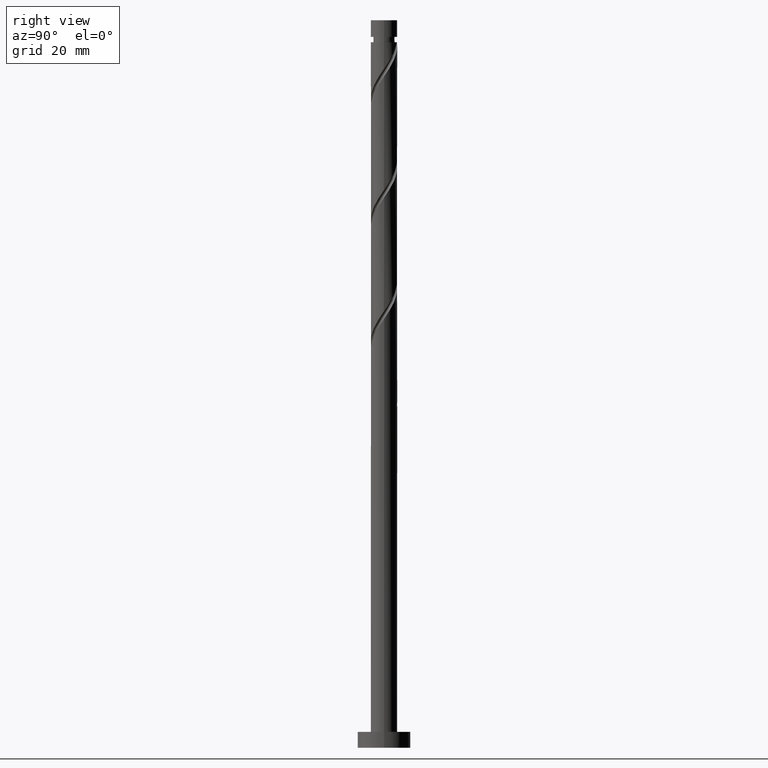
[diagram: clean part render]
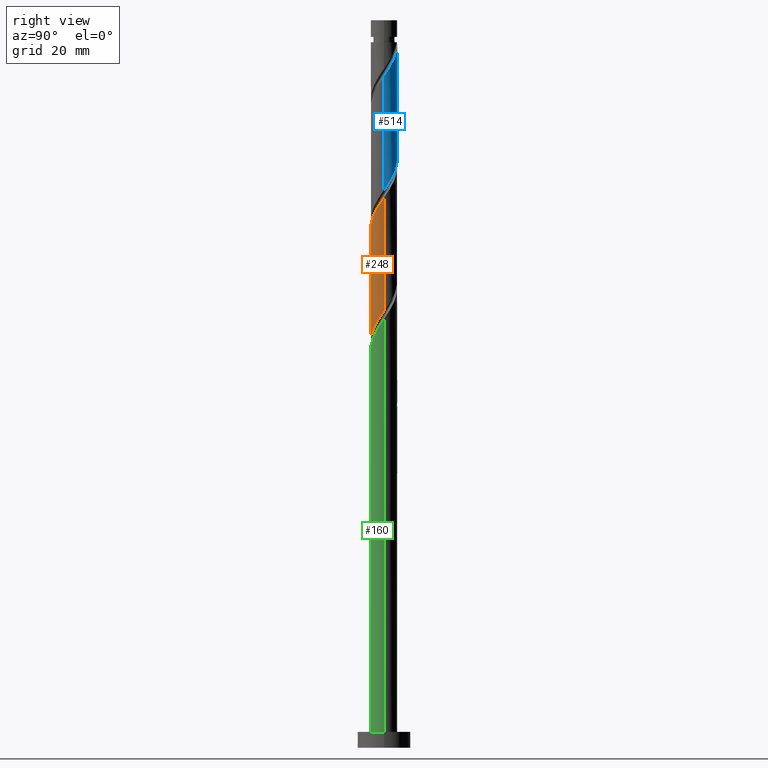
[diagram: same view with three faces highlighted in distinct colors, each labeled with its STEP entity id]
A machine part, right view with three faces highlighted in distinct colors.
Their STEP definitions:

[orange] entity #248 — the highlighted cylindrical surface (edge-blend (fillet) strip) has radius 2.5 mm, axis along (-0, -0, -1).
#80 = CARTESIAN_POINT ( 'NONE',  ( -2.500000000000000000, 0.000000000000000000, 137.4799999999999898 ) ) ;
#85 = CARTESIAN_POINT ( 'NONE',  ( 1.842554741020976605, -1.689672165344845656, 101.2424563204737922 ) ) ;
#89 = ORIENTED_EDGE ( 'NONE', *, *, #1012, .F. ) ;
#104 = CARTESIAN_POINT ( 'NONE',  ( 2.449999999999998401, -0.4974937185533111483, 81.76612298714047711 ) ) ;
#120 = CARTESIAN_POINT ( 'NONE',  ( 1.689672165344841437, -1.842554741020973719, 79.47478965380713589 ) ) ;
#141 = LINE ( 'NONE', #368, #480 ) ;
#151 = DIRECTION ( 'NONE',  ( -0.000000000000000000, -0.000000000000000000, -1.000000000000000000 ) ) ;
#161 = CARTESIAN_POINT ( 'NONE',  ( -2.500000000000003997, -3.163544687256392329E-15, 92.49161333658051376 ) ) ;
#166 = DIRECTION ( 'NONE',  ( -0.000000000000000000, -0.000000000000000000, -1.000000000000000000 ) ) ;
#188 = ORIENTED_EDGE ( 'NONE', *, *, #979, .F. ) ;
#199 = CARTESIAN_POINT ( 'NONE',  ( 1.230236279064655491, -2.176354451295370307, 100.0967896538071358 ) ) ;
#201 = LINE ( 'NONE', #80, #553 ) ;
#202 = VERTEX_POINT ( 'NONE', #161 ) ;
#205 = CARTESIAN_POINT ( 'NONE',  ( 0.4974937185533108708, -2.450000000000003286, 98.95112298714046517 ) ) ;
#211 = CARTESIAN_POINT ( 'NONE',  ( 1.981504166768769837, -1.574936960780884299, 80.04762298714045698 ) ) ;
#223 = CARTESIAN_POINT ( 'NONE',  ( 2.371204735821960785, -0.8855355973484247967, 81.19328965380711338 ) ) ;
#227 = CARTESIAN_POINT ( 'NONE',  ( 0.1094518397581963759, -2.528795264178041791, 98.37828965380712987 ) ) ;
#239 = DIRECTION ( 'NONE',  ( -0.000000000000000000, -0.000000000000000000, -1.000000000000000000 ) ) ;
#242 = EDGE_LOOP ( 'NONE', ( #538, #188, #753, #89 ) ) ;
#248 = ADVANCED_FACE ( 'NONE', ( #1243 ), #522, .T. ) ;
#310 = CARTESIAN_POINT ( 'NONE',  ( 2.499999999999999556, -0.2512594538148057444, 82.12961776015055193 ) ) ;
#343 = CARTESIAN_POINT ( 'NONE',  ( -0.4974937185533110373, -2.449999999999998401, 76.03778965380713828 ) ) ;
#356 = CARTESIAN_POINT ( 'NONE',  ( 2.500000000000003109, -0.1424343436160809273, 103.7398481268934347 ) ) ;
#366 = EDGE_CURVE ( 'NONE', #202, #885, #201, .T. ) ;
#368 = CARTESIAN_POINT ( 'NONE',  ( 2.500000000000000000, 3.061616997868383141E-16, 137.4799999999999898 ) ) ;
#417 = CARTESIAN_POINT ( 'NONE',  ( 2.500000000000003553, 2.803710220459456568E-15, 103.9482800032471630 ) ) ;
#429 = VERTEX_POINT ( 'NONE', #417 ) ;
#460 = CARTESIAN_POINT ( 'NONE',  ( -0.6773458265033737158, -2.438849692923737766, 97.23262298714045926 ) ) ;
#474 = CARTESIAN_POINT ( 'NONE',  ( -2.110172521261064027, -1.397840163920913703, 73.17362298714046176 ) ) ;
#480 = VECTOR ( 'NONE', #239, 1000.000000000000000 ) ;
#522 = CYLINDRICAL_SURFACE ( 'NONE', #1095, 2.500000000000000000 ) ;
#538 = ORIENTED_EDGE ( 'NONE', *, *, #1459, .F. ) ;
#553 = VECTOR ( 'NONE', #166, 1000.000000000000000 ) ;
#566 = CARTESIAN_POINT ( 'NONE',  ( 2.110172521261067136, -1.397840163920917256, 101.8152896538071559 ) ) ;
#569 = CARTESIAN_POINT ( 'NONE',  ( 1.037592995212142544, -2.274511107092398010, 78.32912298714045107 ) ) ;
#679 = CARTESIAN_POINT ( 'NONE',  ( 1.574936960780886075, -1.981504166768774056, 100.6696229871404853 ) ) ;
#682 = CARTESIAN_POINT ( 'NONE',  ( -2.499999999999999112, -3.118565378906798285E-15, 71.04063263770045467 ) ) ;
#694 = CARTESIAN_POINT ( 'NONE',  ( -2.500000000000001776, -0.2512594538148121281, 92.85929488079706573 ) ) ;
#711 = CARTESIAN_POINT ( 'NONE',  ( -1.230236279064653937, -2.176354451295364978, 74.89212298714045346 ) ) ;
#730 = CARTESIAN_POINT ( 'NONE',  ( 2.500000000000003553, 2.803710220459456568E-15, 103.9482800032471630 ) ) ;
#753 = ORIENTED_EDGE ( 'NONE', *, *, #366, .T. ) ;
#847 = CARTESIAN_POINT ( 'NONE',  ( -2.499999999999998224, -0.1424343436160865894, 71.24906451405418295 ) ) ;
#885 = VERTEX_POINT ( 'NONE', #1397 ) ;
#940 = CARTESIAN_POINT ( 'NONE',  ( 2.438849692923737766, -0.6773458265033739378, 102.9609563204737981 ) ) ;
#957 = CARTESIAN_POINT ( 'NONE',  ( -2.500000000000003997, -3.163544687256392329E-15, 92.49161333658051376 ) ) ;
#961 = CARTESIAN_POINT ( 'NONE',  ( -0.1094518397581974167, -2.528795264178037794, 76.61062298714048779 ) ) ;
#979 = EDGE_CURVE ( 'NONE', #202, #429, #1361, .T. ) ;
#1012 = EDGE_CURVE ( 'NONE', #1233, #885, #1531, .T. ) ;
#1060 = CARTESIAN_POINT ( 'NONE',  ( 2.274511107092402451, -1.037592995212145430, 102.3881229871405054 ) ) ;
#1065 = CARTESIAN_POINT ( 'NONE',  ( -1.037592995212145430, -2.274511107092402451, 96.65978965380713817 ) ) ;
#1069 = CARTESIAN_POINT ( 'NONE',  ( -2.483822478550884671, -0.2839469933725872197, 71.45512298714042743 ) ) ;
#1080 = CARTESIAN_POINT ( 'NONE',  ( 1.397840163920913259, -2.110172521261064027, 78.90195632047381480 ) ) ;
#1085 = CARTESIAN_POINT ( 'NONE',  ( -2.274511107092398010, -1.037592995212142544, 72.60078965380711224 ) ) ;
#1095 = AXIS2_PLACEMENT_3D ( 'NONE', #1480, #151, #1127 ) ;
#1097 = CARTESIAN_POINT ( 'NONE',  ( 0.6773458265033714953, -2.438849692923732881, 77.75628965380712998 ) ) ;
#1127 = DIRECTION ( 'NONE',  ( -1.000000000000000000, 0.000000000000000000, 0.000000000000000000 ) ) ;
#1168 = CARTESIAN_POINT ( 'NONE',  ( 0.8855355973484253518, -2.371204735821965226, 99.52395632047382890 ) ) ;
#1182 = CARTESIAN_POINT ( 'NONE',  ( -1.981504166768773612, -1.574936960780886297, 94.94128965380711804 ) ) ;
#1185 = CARTESIAN_POINT ( 'NONE',  ( -1.574936960780884077, -1.981504166768769837, 74.31928965380713237 ) ) ;
#1187 = CARTESIAN_POINT ( 'NONE',  ( 0.2839469933725869422, -2.483822478550884671, 77.18345632047378047 ) ) ;
#1191 = CARTESIAN_POINT ( 'NONE',  ( -2.371204735821965226, -0.8855355973484254628, 93.79562298714046165 ) ) ;
#1198 = CARTESIAN_POINT ( 'NONE',  ( -1.689672165344845656, -1.842554741020976605, 95.51412298714046756 ) ) ;
#1220 = CARTESIAN_POINT ( 'NONE',  ( 2.499999999999999112, 2.818703323242682982E-15, 82.49729930436710390 ) ) ;
#1233 = VERTEX_POINT ( 'NONE', #1310 ) ;
#1243 = FACE_OUTER_BOUND ( 'NONE', #242, .T. ) ;
#1293 = CARTESIAN_POINT ( 'NONE',  ( -1.842554741020973719, -1.689672165344841437, 73.74645632047379706 ) ) ;
#1310 = CARTESIAN_POINT ( 'NONE',  ( 2.499999999999999112, 2.818703323242682982E-15, 82.49729930436710390 ) ) ;
#1318 = CARTESIAN_POINT ( 'NONE',  ( -0.8855355973484246856, -2.371204735821960785, 75.46495632047383140 ) ) ;
#1322 = CARTESIAN_POINT ( 'NONE',  ( -0.2839469933725886630, -2.483822478550889112, 97.80545632047380877 ) ) ;
#1361 =( BOUNDED_CURVE ( )  B_SPLINE_CURVE ( 2, ( #957, #694, #1551, #1191, #1436, #1182, #1198, #1563, #1065, #460, #1322, #227, #205, #1168, #199, #679, #85, #566, #1060, #940, #1422, #356, #730 ),
 .UNSPECIFIED., .F., .T. ) 
 B_SPLINE_CURVE_WITH_KNOTS ( ( 3, 2, 2, 2, 2, 2, 2, 2, 2, 2, 2, 3 ),
 ( 0.3045322023138554712, 0.3125000000000000000, 0.3249999999999999556, 0.3375000000000000222, 0.3499999999999999778, 0.3625000000000000444, 0.3750000000000000000, 0.3874999999999999556, 0.4000000000000000222, 0.4124999999999999778, 0.4250000000000000444, 0.4295322023138552492 ),
 .UNSPECIFIED. ) 
 CURVE ( )  GEOMETRIC_REPRESENTATION_ITEM ( )  RATIONAL_B_SPLINE_CURVE ( ( 0.9039174447099442844, 0.9019565955404740265, 0.9090909090909222723, 0.8978984914501381143, 0.9090909090909222723, 0.8978984914501381143, 0.9090909090909222723, 0.8978984914501381143, 0.9090909090909222723, 0.8978984914501381143, 0.9090909090909222723, 0.8978984914501381143, 0.9090909090909222723, 0.8978984914501381143, 0.9090909090909222723, 0.8978984914501381143, 0.9090909090909222723, 0.8978984914501381143, 0.9090909090909222723, 0.8978984914501381143, 0.9090909090909222723, 0.9050328050005864711, 0.9039174447099442844 ) ) 
 REPRESENTATION_ITEM ( '' )  );
#1397 = CARTESIAN_POINT ( 'NONE',  ( -2.499999999999999112, -3.118565378906798285E-15, 71.04063263770045467 ) ) ;
#1422 = CARTESIAN_POINT ( 'NONE',  ( 2.483822478550889112, -0.2839469933725887740, 103.5337896538071476 ) ) ;
#1436 = CARTESIAN_POINT ( 'NONE',  ( -2.176354451295370307, -1.230236279064655935, 94.36845632047382537 ) ) ;
#1448 = CARTESIAN_POINT ( 'NONE',  ( 2.176354451295364978, -1.230236279064654381, 80.62045632047379229 ) ) ;
#1459 = EDGE_CURVE ( 'NONE', #429, #1233, #141, .T. ) ;
#1480 = CARTESIAN_POINT ( 'NONE',  ( 0.000000000000000000, 0.000000000000000000, 137.4799999999999898 ) ) ;
#1531 =( BOUNDED_CURVE ( )  B_SPLINE_CURVE ( 2, ( #1220, #310, #104, #223, #1448, #211, #120, #1080, #569, #1097, #1187, #961, #343, #1318, #711, #1185, #1293, #474, #1085, #1567, #1069, #847, #682 ),
 .UNSPECIFIED., .F., .T. ) 
 B_SPLINE_CURVE_WITH_KNOTS ( ( 3, 2, 2, 2, 2, 2, 2, 2, 2, 2, 2, 3 ),
 ( 0.8045322023138552492, 0.8125000000000000000, 0.8249999999999999556, 0.8375000000000000222, 0.8499999999999999778, 0.8625000000000000444, 0.8750000000000000000, 0.8874999999999999556, 0.9000000000000000222, 0.9124999999999999778, 0.9250000000000000444, 0.9295322023138550271 ),
 .UNSPECIFIED. ) 
 CURVE ( )  GEOMETRIC_REPRESENTATION_ITEM ( )  RATIONAL_B_SPLINE_CURVE ( ( 0.9039174447099376231, 0.9019565955404669211, 0.9090909090909153889, 0.8978984914501313419, 0.9090909090909153889, 0.8978984914501313419, 0.9090909090909153889, 0.8978984914501313419, 0.9090909090909153889, 0.8978984914501313419, 0.9090909090909153889, 0.8978984914501313419, 0.9090909090909153889, 0.8978984914501313419, 0.9090909090909153889, 0.8978984914501313419, 0.9090909090909153889, 0.8978984914501313419, 0.9090909090909153889, 0.8978984914501313419, 0.9090909090909153889, 0.9050328050005798097, 0.9039174447099376231 ) ) 
 REPRESENTATION_ITEM ( '' )  );
#1551 = CARTESIAN_POINT ( 'NONE',  ( -2.450000000000003286, -0.4974937185533111483, 93.22278965380715476 ) ) ;
#1563 = CARTESIAN_POINT ( 'NONE',  ( -1.397840163920917256, -2.110172521261067136, 96.08695632047380286 ) ) ;
#1567 = CARTESIAN_POINT ( 'NONE',  ( -2.438849692923733326, -0.6773458265033717174, 72.02795632047381957 ) ) ;

[blue] entity #514 — the highlighted cylindrical surface (edge-blend (fillet) strip) has radius 2.5 mm, axis along (-0, -0, -1).
#67 = CARTESIAN_POINT ( 'NONE',  ( -1.981504166768769837, 1.574936960780883632, 114.4176229871404331 ) ) ;
#73 = CARTESIAN_POINT ( 'NONE',  ( -2.449999999999998401, 0.4974937185533108153, 116.1361229871404674 ) ) ;
#74 = ORIENTED_EDGE ( 'NONE', *, *, #1171, .T. ) ;
#91 = CARTESIAN_POINT ( 'NONE',  ( -2.176354451295364978, 1.230236279064653715, 114.9904563204737826 ) ) ;
#92 = EDGE_CURVE ( 'NONE', #1570, #447, #719, .T. ) ;
#102 = CIRCLE ( 'NONE', #1553, 2.499999999999995115 ) ;
#137 = CYLINDRICAL_SURFACE ( 'NONE', #1314, 2.500000000000000000 ) ;
#146 = CARTESIAN_POINT ( 'NONE',  ( -0.4974937185533402917, 2.449999999999987743, 133.3211229871404839 ) ) ;
#162 = CARTESIAN_POINT ( 'NONE',  ( 1.981504166768774056, 1.574936960780886075, 129.3112896538071368 ) ) ;
#169 = CARTESIAN_POINT ( 'NONE',  ( 0.6773458265033739378, 2.438849692923737766, 131.6026229871404780 ) ) ;
#179 = CARTESIAN_POINT ( 'NONE',  ( -1.397840163920914147, 2.110172521261064027, 113.2719563204737767 ) ) ;
#190 = CARTESIAN_POINT ( 'NONE',  ( 1.842554741020974163, 1.689672165344841437, 108.1164563204737732 ) ) ;
#195 = CARTESIAN_POINT ( 'NONE',  ( 1.689672165344846100, 1.842554741020976605, 129.8841229871404721 ) ) ;
#213 = CARTESIAN_POINT ( 'NONE',  ( 2.483822478550884671, 0.2839469933725869422, 105.8251229871404604 ) ) ;
#279 = CARTESIAN_POINT ( 'NONE',  ( -0.1094518397582067565, 2.528795264178042679, 132.7482896538071770 ) ) ;
#288 = CARTESIAN_POINT ( 'NONE',  ( 0.000000000000000000, 0.000000000000000000, 137.4799999999999898 ) ) ;
#296 = ORIENTED_EDGE ( 'NONE', *, *, #1057, .T. ) ;
#298 = CARTESIAN_POINT ( 'NONE',  ( -2.499999999999999112, -8.995861669923457122E-16, 116.8672993043671369 ) ) ;
#319 = CARTESIAN_POINT ( 'NONE',  ( -2.371204735821960785, 0.8855355973484245746, 115.5632896538071037 ) ) ;
#323 = CARTESIAN_POINT ( 'NONE',  ( -2.499999999999995115, 0.000000000000000000, 133.3211229871404555 ) ) ;
#329 = CARTESIAN_POINT ( 'NONE',  ( -0.2839469933725872752, 2.483822478550883783, 111.5534563204737992 ) ) ;
#392 = CARTESIAN_POINT ( 'NONE',  ( 2.500000000000002665, 1.544289586670181604E-15, 126.8616133365804757 ) ) ;
#401 = CARTESIAN_POINT ( 'NONE',  ( 0.2839469933725889961, 2.483822478550889112, 132.1754563204738417 ) ) ;
#437 = LINE ( 'NONE', #670, #1073 ) ;
#444 = EDGE_LOOP ( 'NONE', ( #875, #74, #650, #1079, #296 ) ) ;
#447 = VERTEX_POINT ( 'NONE', #1565 ) ;
#455 = CARTESIAN_POINT ( 'NONE',  ( 1.574936960780884299, 1.981504166768769837, 108.6892896538071511 ) ) ;
#514 = ADVANCED_FACE ( 'NONE', ( #1222 ), #137, .T. ) ;
#537 = CARTESIAN_POINT ( 'NONE',  ( 2.500000000000004885, 0.2512594538147978618, 127.2292948807970419 ) ) ;
#547 = CARTESIAN_POINT ( 'NONE',  ( -1.689672165344841659, 1.842554741020973719, 113.8447896538070978 ) ) ;
#558 = CARTESIAN_POINT ( 'NONE',  ( 2.499999999999999112, 0.1424343436160793175, 105.6190645140542017 ) ) ;
#622 = CARTESIAN_POINT ( 'NONE',  ( -2.499999999999999112, -8.995861669923457122E-16, 116.8672993043671369 ) ) ;
#650 = ORIENTED_EDGE ( 'NONE', *, *, #92, .F. ) ;
#664 = CARTESIAN_POINT ( 'NONE',  ( 0.1094518397581970837, 2.528795264178037794, 110.9806229871404781 ) ) ;
#670 = CARTESIAN_POINT ( 'NONE',  ( -2.500000000000000000, 0.000000000000000000, 137.4799999999999898 ) ) ;
#676 = CARTESIAN_POINT ( 'NONE',  ( 1.397840163920917256, 2.110172521261066692, 130.4569563204738358 ) ) ;
#685 = CARTESIAN_POINT ( 'NONE',  ( -1.037592995212142988, 2.274511107092398010, 112.6991229871404556 ) ) ;
#703 = VECTOR ( 'NONE', #1401, 1000.000000000000000 ) ;
#719 =( BOUNDED_CURVE ( )  B_SPLINE_CURVE ( 2, ( #298, #1268, #73, #319, #91, #67, #547, #179, #685, #1179, #329, #664, #1147, #1062, #948, #455, #190, #1430, #825, #1304, #213, #558, #1277 ),
 .UNSPECIFIED., .F., .T. ) 
 B_SPLINE_CURVE_WITH_KNOTS ( ( 3, 2, 2, 2, 2, 2, 2, 2, 2, 2, 2, 3 ),
 ( 0.4295322023138550271, 0.4375000000000000000, 0.4500000000000000111, 0.4625000000000000222, 0.4749999999999999778, 0.4874999999999999889, 0.5000000000000000000, 0.5124999999999999556, 0.5250000000000000222, 0.5374999999999999778, 0.5500000000000000444, 0.5545322023138552492 ),
 .UNSPECIFIED. ) 
 CURVE ( )  GEOMETRIC_REPRESENTATION_ITEM ( )  RATIONAL_B_SPLINE_CURVE ( ( 0.9039174447099378451, 0.9019565955404669211, 0.9090909090909153889, 0.8978984914501313419, 0.9090909090909153889, 0.8978984914501313419, 0.9090909090909153889, 0.8978984914501313419, 0.9090909090909153889, 0.8978984914501313419, 0.9090909090909153889, 0.8978984914501313419, 0.9090909090909153889, 0.8978984914501313419, 0.9090909090909153889, 0.8978984914501313419, 0.9090909090909153889, 0.8978984914501313419, 0.9090909090909153889, 0.8978984914501313419, 0.9090909090909153889, 0.9050328050005796987, 0.9039174447099376231 ) ) 
 REPRESENTATION_ITEM ( '' )  );
#788 = DIRECTION ( 'NONE',  ( -0.000000000000000000, -0.000000000000000000, -1.000000000000000000 ) ) ;
#794 = CARTESIAN_POINT ( 'NONE',  ( 2.500000000000002665, 1.544289586670181604E-15, 126.8616133365804757 ) ) ;
#803 = CARTESIAN_POINT ( 'NONE',  ( 2.176354451295370307, 1.230236279064655491, 128.7384563204738015 ) ) ;
#806 = DIRECTION ( 'NONE',  ( -1.000000000000000000, 0.000000000000000000, 0.000000000000000000 ) ) ;
#825 = CARTESIAN_POINT ( 'NONE',  ( 2.274511107092398010, 1.037592995212142322, 106.9707896538071168 ) ) ;
#875 = ORIENTED_EDGE ( 'NONE', *, *, #1159, .F. ) ;
#923 = CARTESIAN_POINT ( 'NONE',  ( 2.371204735821965226, 0.8855355973484252408, 128.1656229871404662 ) ) ;
#948 = CARTESIAN_POINT ( 'NONE',  ( 1.230236279064654381, 2.176354451295364534, 109.2621229871404438 ) ) ;
#970 = VERTEX_POINT ( 'NONE', #323 ) ;
#1026 = LINE ( 'NONE', #1507, #703 ) ;
#1057 = EDGE_CURVE ( 'NONE', #970, #1475, #102, .T. ) ;
#1062 = CARTESIAN_POINT ( 'NONE',  ( 0.8855355973484250187, 2.371204735821960785, 109.8349563204737933 ) ) ;
#1073 = VECTOR ( 'NONE', #1164, 1000.000000000000000 ) ;
#1079 = ORIENTED_EDGE ( 'NONE', *, *, #1096, .F. ) ;
#1096 = EDGE_CURVE ( 'NONE', #970, #1570, #437, .T. ) ;
#1137 = CARTESIAN_POINT ( 'NONE',  ( 1.037592995212145874, 2.274511107092402451, 131.0297896538071143 ) ) ;
#1146 = CARTESIAN_POINT ( 'NONE',  ( 0.000000000000000000, 0.000000000000000000, 133.3211229871404555 ) ) ;
#1147 = CARTESIAN_POINT ( 'NONE',  ( 0.4974937185533112594, 2.449999999999998401, 110.4077896538071286 ) ) ;
#1155 = CARTESIAN_POINT ( 'NONE',  ( -0.4974937185533402917, 2.449999999999987743, 133.3211229871404839 ) ) ;
#1159 = EDGE_CURVE ( 'NONE', #1408, #1475, #1209, .T. ) ;
#1164 = DIRECTION ( 'NONE',  ( -0.000000000000000000, -0.000000000000000000, -1.000000000000000000 ) ) ;
#1171 = EDGE_CURVE ( 'NONE', #1408, #447, #1026, .T. ) ;
#1172 = DIRECTION ( 'NONE',  ( -0.000000000000000000, -0.000000000000000000, -1.000000000000000000 ) ) ;
#1179 = CARTESIAN_POINT ( 'NONE',  ( -0.6773458265033717174, 2.438849692923733326, 112.1262896538071203 ) ) ;
#1209 =( BOUNDED_CURVE ( )  B_SPLINE_CURVE ( 2, ( #794, #537, #1498, #923, #803, #162, #195, #676, #1137, #169, #401, #279, #1155 ),
 .UNSPECIFIED., .F., .T. ) 
 B_SPLINE_CURVE_WITH_KNOTS ( ( 3, 2, 2, 2, 2, 2, 3 ),
 ( 0.6795322023138550271, 0.6875000000000000000, 0.7000000000000000666, 0.7125000000000001332, 0.7250000000000001998, 0.7375000000000002665, 0.7500000000000003331 ),
 .UNSPECIFIED. ) 
 CURVE ( )  GEOMETRIC_REPRESENTATION_ITEM ( )  RATIONAL_B_SPLINE_CURVE ( ( 0.9039174447099445064, 0.9019565955404735824, 0.9090909090909222723, 0.8978984914501381143, 0.9090909090909222723, 0.8978984914501381143, 0.9090909090909222723, 0.8978984914501381143, 0.9090909090909222723, 0.8978984914501381143, 0.9090909090909222723, 0.8978984914501377812, 0.9090909090909226054 ) ) 
 REPRESENTATION_ITEM ( '' )  );
#1222 = FACE_OUTER_BOUND ( 'NONE', #444, .T. ) ;
#1268 = CARTESIAN_POINT ( 'NONE',  ( -2.500000000000000000, 0.2512594538147995826, 116.4996177601505565 ) ) ;
#1277 = CARTESIAN_POINT ( 'NONE',  ( 2.499999999999999112, 2.818703323242682982E-15, 105.4106326377004592 ) ) ;
#1283 = DIRECTION ( 'NONE',  ( -1.000000000000000000, 0.000000000000000000, 0.000000000000000000 ) ) ;
#1304 = CARTESIAN_POINT ( 'NONE',  ( 2.438849692923732881, 0.6773458265033714953, 106.3979563204738099 ) ) ;
#1314 = AXIS2_PLACEMENT_3D ( 'NONE', #288, #788, #806 ) ;
#1401 = DIRECTION ( 'NONE',  ( -0.000000000000000000, -0.000000000000000000, -1.000000000000000000 ) ) ;
#1408 = VERTEX_POINT ( 'NONE', #392 ) ;
#1430 = CARTESIAN_POINT ( 'NONE',  ( 2.110172521261064027, 1.397840163920913259, 107.5436229871404521 ) ) ;
#1475 = VERTEX_POINT ( 'NONE', #146 ) ;
#1498 = CARTESIAN_POINT ( 'NONE',  ( 2.450000000000003286, 0.4974937185533108153, 127.5927896538071593 ) ) ;
#1507 = CARTESIAN_POINT ( 'NONE',  ( 2.500000000000000000, 3.061616997868383141E-16, 137.4799999999999898 ) ) ;
#1553 = AXIS2_PLACEMENT_3D ( 'NONE', #1146, #1172, #1283 ) ;
#1565 = CARTESIAN_POINT ( 'NONE',  ( 2.499999999999999112, 2.818703323242682982E-15, 105.4106326377004592 ) ) ;
#1570 = VERTEX_POINT ( 'NONE', #622 ) ;

[green] entity #160 — the highlighted cylindrical surface (edge-blend (fillet) strip) has radius 2.5 mm, axis along (-0, -0, -1).
#4 = CARTESIAN_POINT ( 'NONE',  ( -2.500000000000000000, 0.000000000000000000, 137.4799999999999898 ) ) ;
#50 = CARTESIAN_POINT ( 'NONE',  ( -2.450000000000003286, -0.4974937185533111483, 70.30945632047382787 ) ) ;
#53 = EDGE_LOOP ( 'NONE', ( #577, #1562, #1186, #1259 ) ) ;
#143 = EDGE_CURVE ( 'NONE', #802, #475, #490, .T. ) ;
#160 = ADVANCED_FACE ( 'NONE', ( #1572 ), #1455, .T. ) ;
#208 = CARTESIAN_POINT ( 'NONE',  ( -0.2839469933725886630, -2.483822478550889112, 74.89212298714045346 ) ) ;
#209 = EDGE_CURVE ( 'NONE', #802, #1163, #1371, .T. ) ;
#222 = CARTESIAN_POINT ( 'NONE',  ( 0.8855355973484253518, -2.371204735821965226, 76.61062298714048779 ) ) ;
#234 = EDGE_CURVE ( 'NONE', #1163, #1139, #897, .T. ) ;
#316 = CARTESIAN_POINT ( 'NONE',  ( -2.500000000000000000, 0.000000000000000000, 3.000000000000000000 ) ) ;
#326 = CARTESIAN_POINT ( 'NONE',  ( 2.110172521261067136, -1.397840163920917256, 78.90195632047382901 ) ) ;
#345 = DIRECTION ( 'NONE',  ( -0.000000000000000000, -0.000000000000000000, -1.000000000000000000 ) ) ;
#353 = CARTESIAN_POINT ( 'NONE',  ( 1.230236279064655491, -2.176354451295370307, 77.18345632047379468 ) ) ;
#360 = CARTESIAN_POINT ( 'NONE',  ( 0.000000000000000000, 0.000000000000000000, 137.4799999999999898 ) ) ;
#475 = VERTEX_POINT ( 'NONE', #316 ) ;
#476 = CARTESIAN_POINT ( 'NONE',  ( -1.397840163920917256, -2.110172521261067136, 73.17362298714047597 ) ) ;
#490 = LINE ( 'NONE', #4, #1386 ) ;
#513 = CARTESIAN_POINT ( 'NONE',  ( 2.438849692923737766, -0.6773458265033739378, 80.04762298714045698 ) ) ;
#533 = CARTESIAN_POINT ( 'NONE',  ( 2.500000000000003553, 2.803710220459456568E-15, 81.03494666991382189 ) ) ;
#577 = ORIENTED_EDGE ( 'NONE', *, *, #234, .F. ) ;
#619 = CARTESIAN_POINT ( 'NONE',  ( -2.500000000000003997, -3.163544687256392329E-15, 69.57828000324714424 ) ) ;
#630 = CARTESIAN_POINT ( 'NONE',  ( 2.483822478550889112, -0.2839469933725887740, 80.62045632047380650 ) ) ;
#647 = CARTESIAN_POINT ( 'NONE',  ( -2.500000000000003997, -3.163544687256392329E-15, 69.57828000324714424 ) ) ;
#669 = AXIS2_PLACEMENT_3D ( 'NONE', #360, #855, #1465 ) ;
#698 = CARTESIAN_POINT ( 'NONE',  ( -1.037592995212145430, -2.274511107092402451, 73.74645632047381127 ) ) ;
#710 = CARTESIAN_POINT ( 'NONE',  ( -1.981504166768773612, -1.574936960780886297, 72.02795632047381957 ) ) ;
#724 = CARTESIAN_POINT ( 'NONE',  ( -1.689672165344845656, -1.842554741020976605, 72.60078965380714067 ) ) ;
#741 = CARTESIAN_POINT ( 'NONE',  ( 2.500000000000000000, 3.061616997868383141E-16, 137.4799999999999898 ) ) ;
#757 = DIRECTION ( 'NONE',  ( -0.000000000000000000, -0.000000000000000000, -1.000000000000000000 ) ) ;
#781 = CIRCLE ( 'NONE', #1424, 2.500000000000000000 ) ;
#802 = VERTEX_POINT ( 'NONE', #619 ) ;
#818 = DIRECTION ( 'NONE',  ( 0.000000000000000000, 0.000000000000000000, 1.000000000000000000 ) ) ;
#823 = CARTESIAN_POINT ( 'NONE',  ( 2.274511107092402451, -1.037592995212145430, 79.47478965380712168 ) ) ;
#848 = CARTESIAN_POINT ( 'NONE',  ( 1.574936960780886075, -1.981504166768774056, 77.75628965380712998 ) ) ;
#853 = CARTESIAN_POINT ( 'NONE',  ( -2.176354451295370307, -1.230236279064655935, 71.45512298714048427 ) ) ;
#855 = DIRECTION ( 'NONE',  ( -0.000000000000000000, -0.000000000000000000, -1.000000000000000000 ) ) ;
#872 = CARTESIAN_POINT ( 'NONE',  ( 2.500000000000002665, -0.1424343436160852572, 80.82651479356006519 ) ) ;
#897 = LINE ( 'NONE', #741, #1390 ) ;
#945 = CARTESIAN_POINT ( 'NONE',  ( 0.4974937185533108708, -2.450000000000003286, 76.03778965380715249 ) ) ;
#971 = CARTESIAN_POINT ( 'NONE',  ( 0.1094518397581963759, -2.528795264178041791, 75.46495632047383140 ) ) ;
#974 = EDGE_CURVE ( 'NONE', #475, #1139, #781, .T. ) ;
#1004 = CARTESIAN_POINT ( 'NONE',  ( -2.371204735821965226, -0.8855355973484254628, 70.88228965380712054 ) ) ;
#1139 = VERTEX_POINT ( 'NONE', #1252 ) ;
#1163 = VERTEX_POINT ( 'NONE', #533 ) ;
#1186 = ORIENTED_EDGE ( 'NONE', *, *, #143, .T. ) ;
#1252 = CARTESIAN_POINT ( 'NONE',  ( 2.500000000000000000, 3.061616997868383141E-16, 3.000000000000000000 ) ) ;
#1259 = ORIENTED_EDGE ( 'NONE', *, *, #974, .T. ) ;
#1307 = DIRECTION ( 'NONE',  ( 1.000000000000000000, 0.000000000000000000, 0.000000000000000000 ) ) ;
#1316 = CARTESIAN_POINT ( 'NONE',  ( -0.6773458265033737158, -2.438849692923737766, 74.31928965380716079 ) ) ;
#1352 = CARTESIAN_POINT ( 'NONE',  ( -2.500000000000004885, -0.2512594538147989165, 69.94596154746371042 ) ) ;
#1363 = CARTESIAN_POINT ( 'NONE',  ( 2.500000000000003553, 2.803710220459456568E-15, 81.03494666991382189 ) ) ;
#1371 =( BOUNDED_CURVE ( )  B_SPLINE_CURVE ( 2, ( #647, #1352, #50, #1004, #853, #710, #724, #476, #698, #1316, #208, #971, #945, #222, #353, #848, #1427, #326, #823, #513, #630, #872, #1363 ),
 .UNSPECIFIED., .F., .T. ) 
 B_SPLINE_CURVE_WITH_KNOTS ( ( 3, 2, 2, 2, 2, 2, 2, 2, 2, 2, 2, 3 ),
 ( 0.05453220231385504796, 0.06250000000000000000, 0.07499999999999995559, 0.08750000000000002220, 0.09999999999999997780, 0.1125000000000000444, 0.1250000000000000000, 0.1374999999999999556, 0.1500000000000000222, 0.1624999999999999778, 0.1750000000000000444, 0.1795322023138551104 ),
 .UNSPECIFIED. ) 
 CURVE ( )  GEOMETRIC_REPRESENTATION_ITEM ( )  RATIONAL_B_SPLINE_CURVE ( ( 0.9039174447099445064, 0.9019565955404735824, 0.9090909090909222723, 0.8978984914501381143, 0.9090909090909222723, 0.8978984914501381143, 0.9090909090909222723, 0.8978984914501381143, 0.9090909090909222723, 0.8978984914501381143, 0.9090909090909222723, 0.8978984914501381143, 0.9090909090909222723, 0.8978984914501381143, 0.9090909090909222723, 0.8978984914501381143, 0.9090909090909222723, 0.8978984914501381143, 0.9090909090909222723, 0.8978984914501381143, 0.9090909090909222723, 0.9050328050005866931, 0.9039174447099443954 ) ) 
 REPRESENTATION_ITEM ( '' )  );
#1386 = VECTOR ( 'NONE', #345, 1000.000000000000000 ) ;
#1390 = VECTOR ( 'NONE', #757, 1000.000000000000000 ) ;
#1414 = CARTESIAN_POINT ( 'NONE',  ( 0.000000000000000000, 0.000000000000000000, 3.000000000000000000 ) ) ;
#1424 = AXIS2_PLACEMENT_3D ( 'NONE', #1414, #818, #1307 ) ;
#1427 = CARTESIAN_POINT ( 'NONE',  ( 1.842554741020976605, -1.689672165344845656, 78.32912298714046528 ) ) ;
#1455 = CYLINDRICAL_SURFACE ( 'NONE', #669, 2.500000000000000000 ) ;
#1465 = DIRECTION ( 'NONE',  ( -1.000000000000000000, 0.000000000000000000, 0.000000000000000000 ) ) ;
#1562 = ORIENTED_EDGE ( 'NONE', *, *, #209, .F. ) ;
#1572 = FACE_OUTER_BOUND ( 'NONE', #53, .T. ) ;